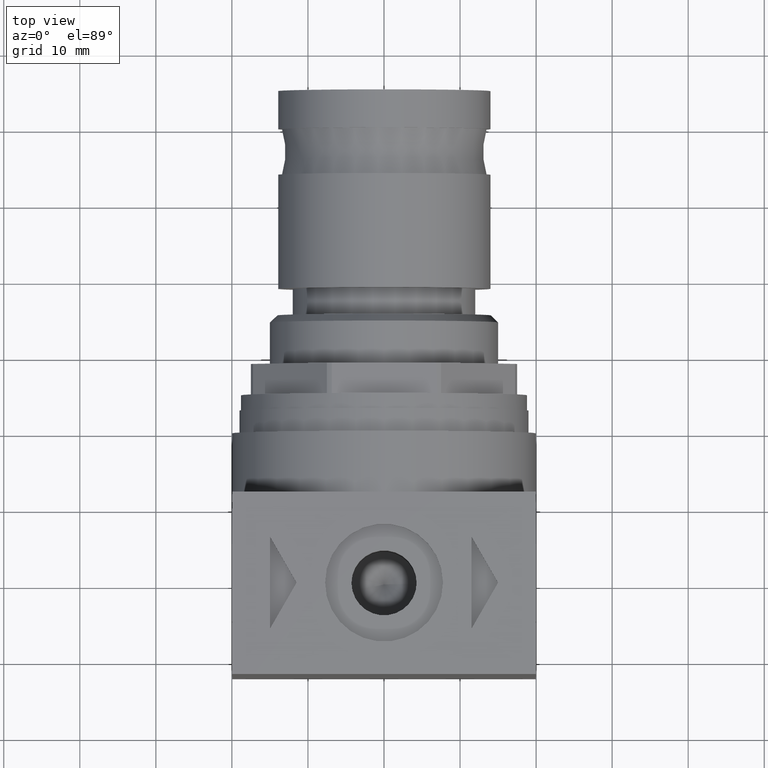
[diagram: clean part render]
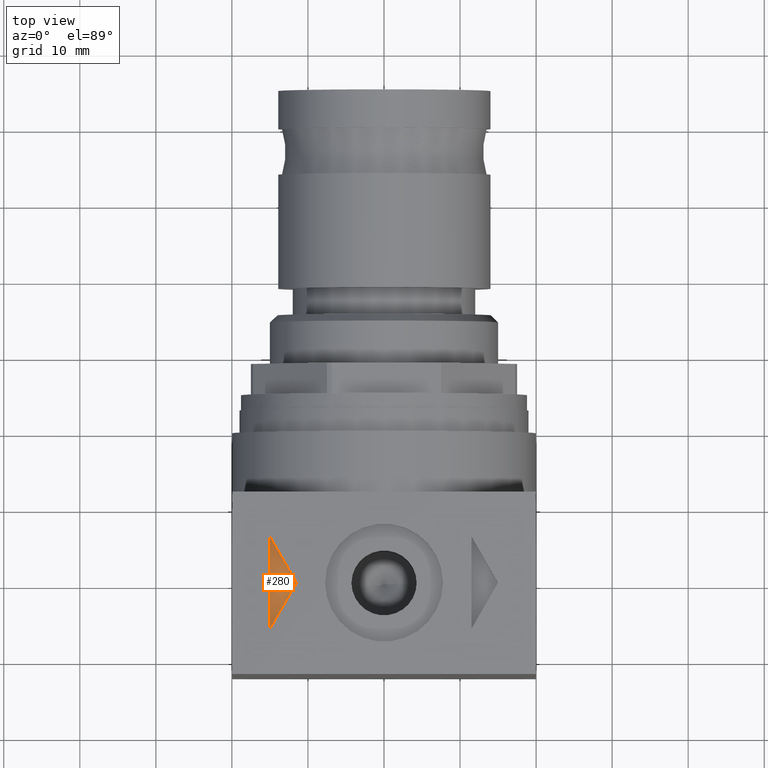
[diagram: same view with one face highlighted and labeled with its STEP entity id]
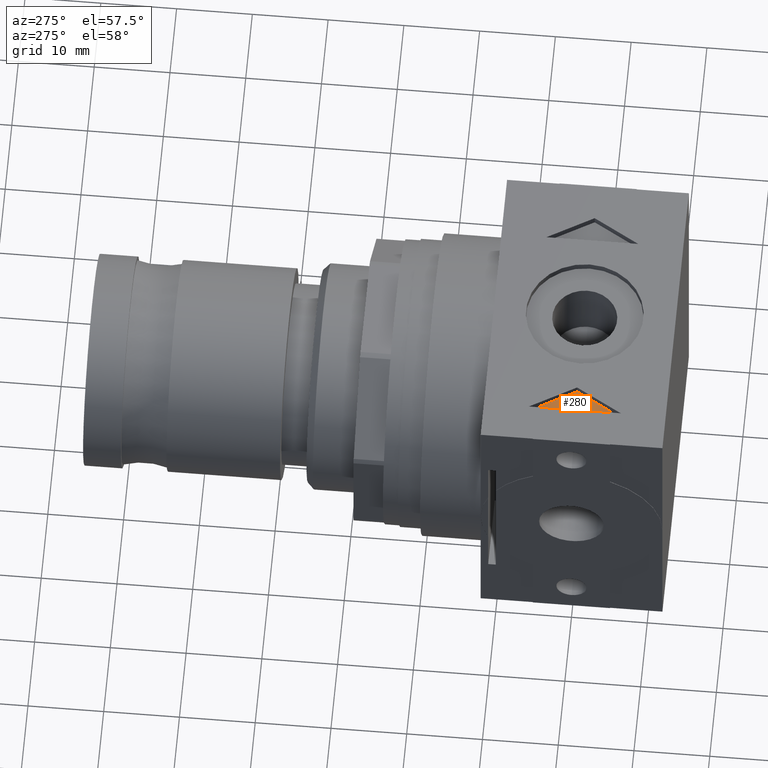
[diagram: same view with one face highlighted and labeled with its STEP entity id]
A machine part, top view. The second image highlights one B-rep face of the part: STEP entity #280.
A second angle (auxiliary view) of the same face is appended — the face is thin or edge-on in the first view.
In plain terms, the highlighted planar face has unit normal (0, 0, -1).
Its self-contained STEP definition (entity closure, byte-faithful):
#280 = ADVANCED_FACE( '', ( #616 ), #617, .F. );
#616 = FACE_OUTER_BOUND( '', #1061, .T. );
#617 = PLANE( '', #1062 );
#1061 = EDGE_LOOP( '', ( #1666, #1667, #1668 ) );
#1062 = AXIS2_PLACEMENT_3D( '', #1669, #1670, #1671 );
#1666 = ORIENTED_EDGE( '', *, *, #2534, .T. );
#1667 = ORIENTED_EDGE( '', *, *, #2524, .T. );
#1668 = ORIENTED_EDGE( '', *, *, #2450, .T. );
#1669 = CARTESIAN_POINT( '', ( -0.000000000000000, -0.000000000000000, 19.0000000000000 ) );
#1670 = DIRECTION( '', ( 0.000000000000000, 0.000000000000000, -1.00000000000000 ) );
#1671 = DIRECTION( '', ( -1.00000000000000, 0.000000000000000, 0.000000000000000 ) );
#2450 = EDGE_CURVE( '', #2865, #2863, #2866, .T. );
#2524 = EDGE_CURVE( '', #2989, #2865, #2990, .T. );
#2534 = EDGE_CURVE( '', #2863, #2989, #3002, .T. );
#2863 = VERTEX_POINT( '', #3449 );
#2865 = VERTEX_POINT( '', #3452 );
#2866 = LINE( '', #3453, #3454 );
#2989 = VERTEX_POINT( '', #3622 );
#2990 = LINE( '', #3623, #3624 );
#3002 = LINE( '', #3640, #3641 );
#3449 = CARTESIAN_POINT( '', ( -11.5000000000000, 0.000000000000000, 19.0000000000000 ) );
#3452 = CARTESIAN_POINT( '', ( -15.0000000000000, -6.06217782649107, 19.0000000000000 ) );
#3453 = CARTESIAN_POINT( '', ( -15.0000000000000, -6.06217782649107, 19.0000000000000 ) );
#3454 = VECTOR( '', #4179, 1000.00000000000 );
#3622 = CARTESIAN_POINT( '', ( -15.0000000000000, 6.06217782649107, 19.0000000000000 ) );
#3623 = CARTESIAN_POINT( '', ( -15.0000000000000, 6.06217782649107, 19.0000000000000 ) );
#3624 = VECTOR( '', #4258, 1000.00000000000 );
#3640 = CARTESIAN_POINT( '', ( -11.5000000000000, 0.000000000000000, 19.0000000000000 ) );
#3641 = VECTOR( '', #4269, 1000.00000000000 );
#4179 = DIRECTION( '', ( 0.500000000000000, 0.866025403784439, 0.000000000000000 ) );
#4258 = DIRECTION( '', ( 0.000000000000000, -1.00000000000000, 0.000000000000000 ) );
#4269 = DIRECTION( '', ( -0.500000000000000, 0.866025403784439, 0.000000000000000 ) );